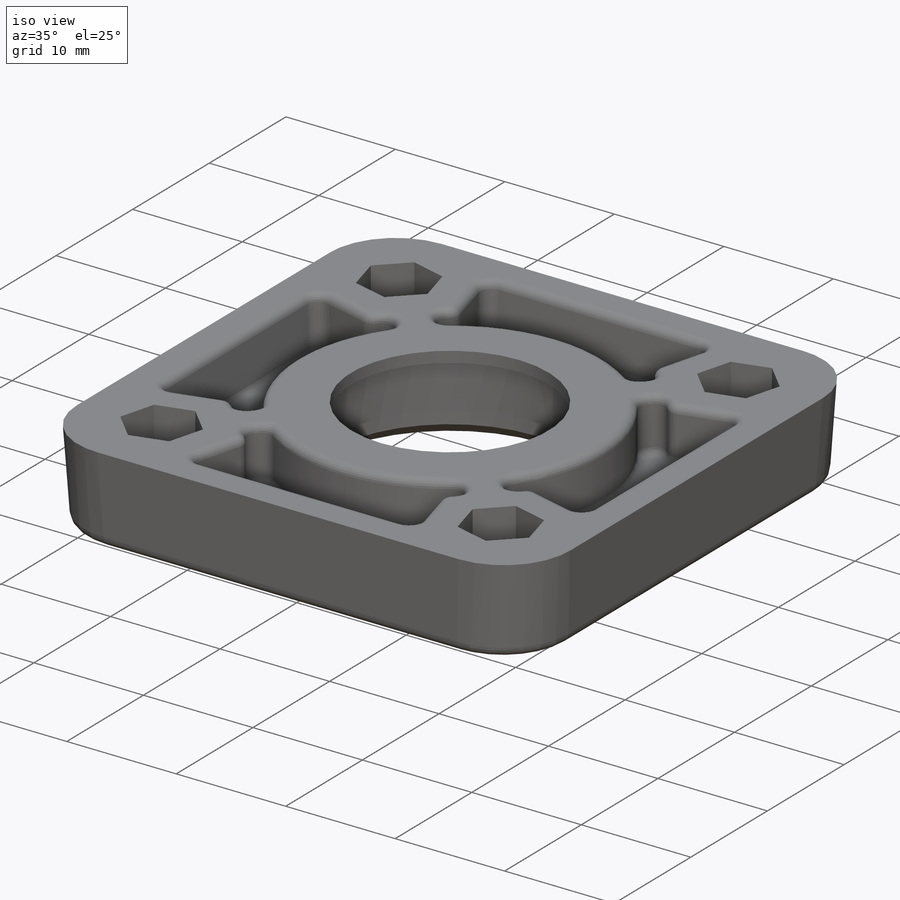
[diagram: iso view]
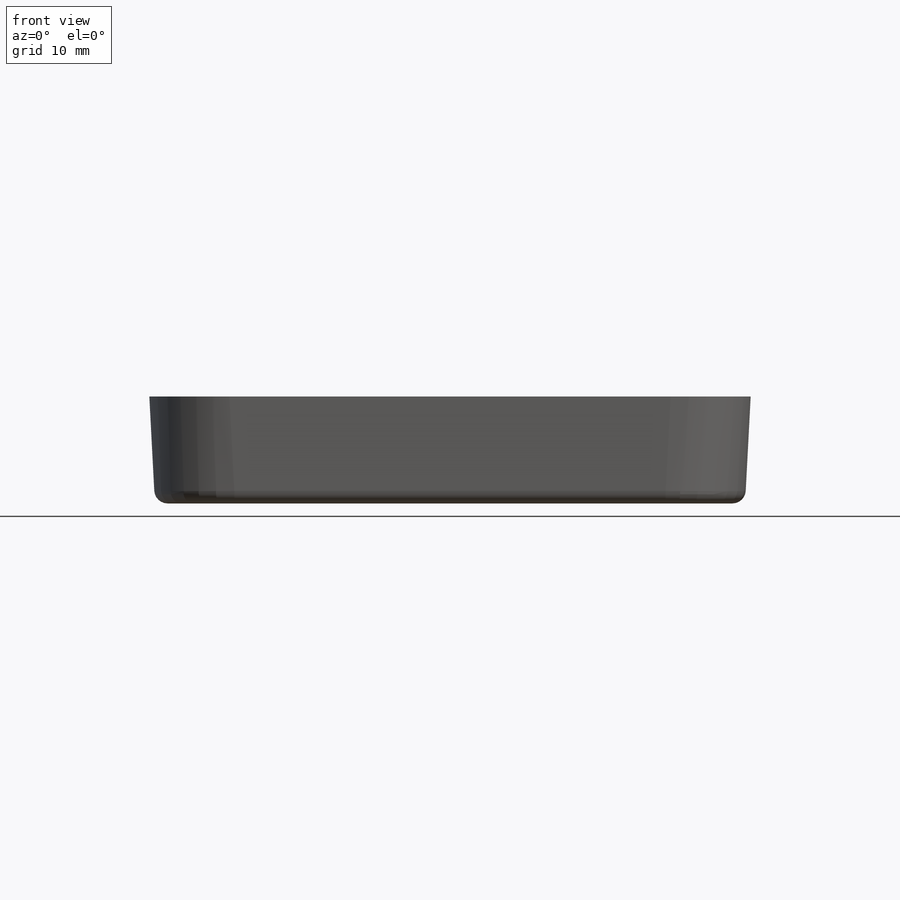
[diagram: front view]
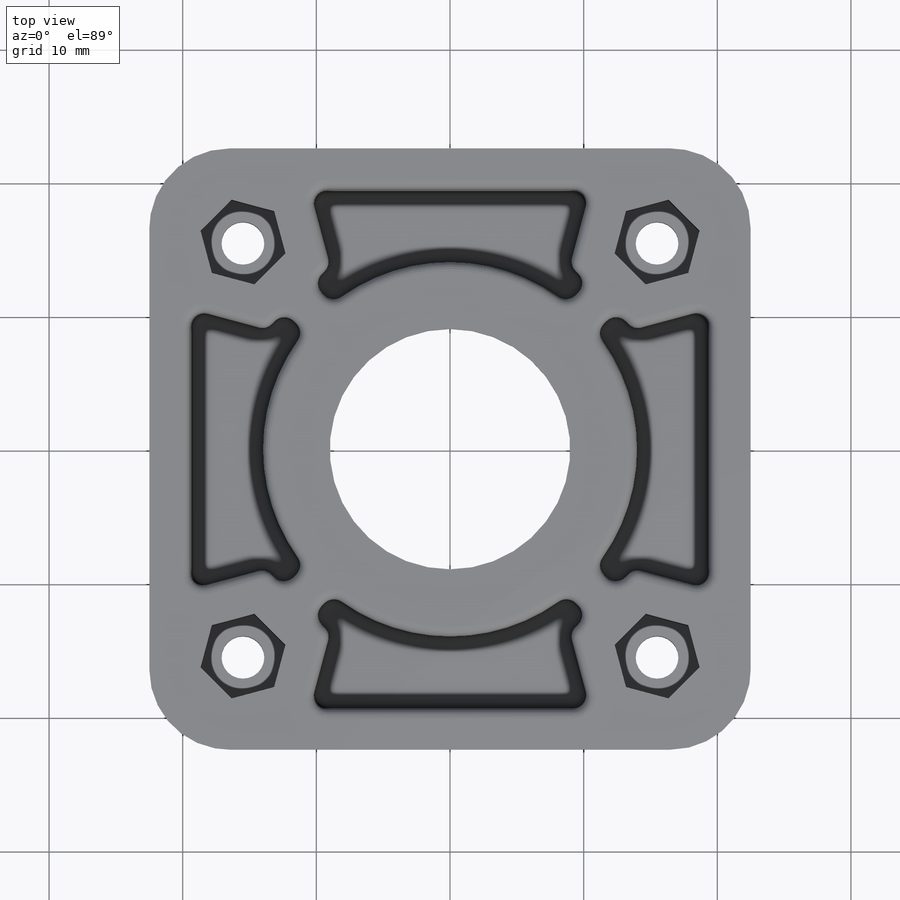
[diagram: top view]
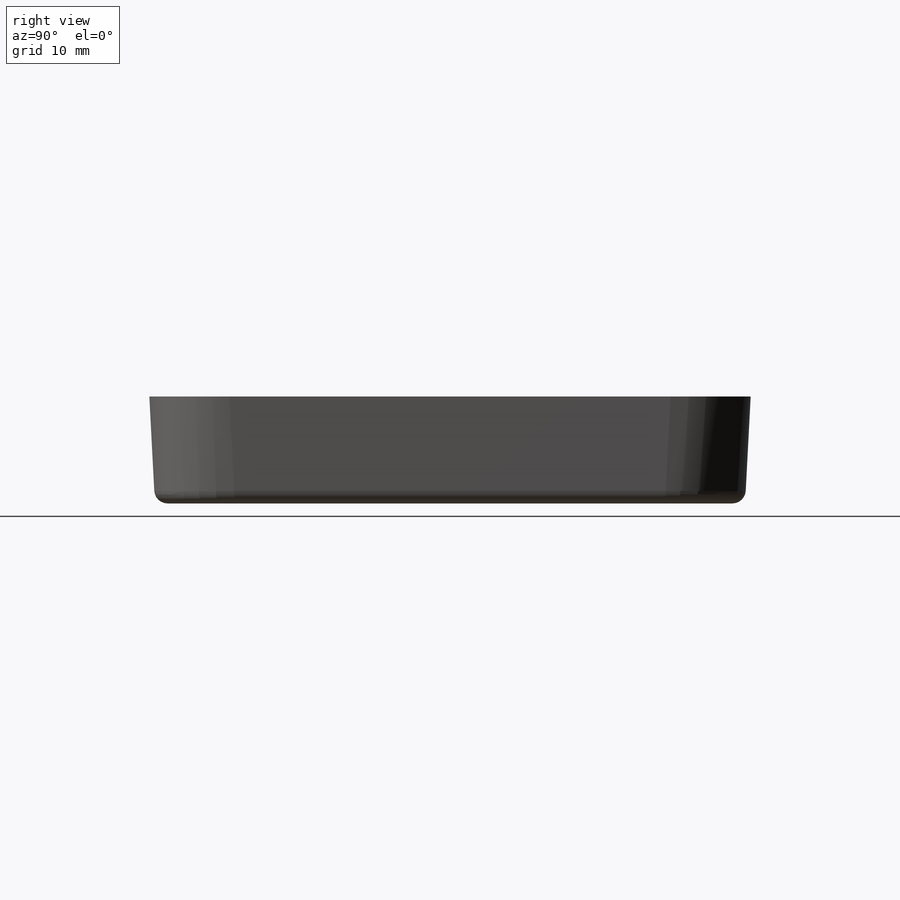
[diagram: right view]
SOLIDWORKS PART (.sldprt)
format: sldprt  version: not decoded by parser v0  size: 1,366,528 bytes
history: native  units: mm
features: sketch x6, fillet x4, extrude x3, cut_extrude x2, material x1, shell x1, chamfer x1 (+11 scaffold rows collapsed)
feature tree (29):
  scaffold x11  (default folders/planes/origin — collapsed)
  material  "Material <not specified>"
  sketch  "Sketch1"  dims[D2=3.2mm D4=22.0mm D1=30.988mm D3=45.0mm]
  extrude  "Boss-Extrude1"  Depth=8mm
  sketch  "Sketch2"  dims[D1=2.0mm]
  sketch  "Sketch3"  dims[D1=5.7mm]
  cut_extrude  "Cut-Extrude1"  Depth=3mm
  fillet  "Fillet1"  Radius=6mm
  shell  "Shell1"  Thickness=3mm
  extrude  "Boss-Extrude3"  Depth=1mm
  chamfer  "Chamfer2"  Distance=1mm Angle=45deg
  sketch  "Sketch4"  dims[D1=3.0mm]
  extrude  "Boss-Extrude4"  [1 undecoded]
  fillet  "Fillet3"  Radius=1mm
  sketch  "Sketch5"  dims[D1=1.0mm]
  cut_extrude  "Cut-Extrude4"  Depth=0.3mm
  fillet  "Fillet4"  Radius=1mm
  sketch  "Sketch6"
  fillet  "Fillet5"  Radius=0.7mm
decode coverage: 15 of 17 modeling features carry decoded parameters
note: 1 parameter value undecoded
note: suppression state not decoded; provenance and decode notes live in map.json
